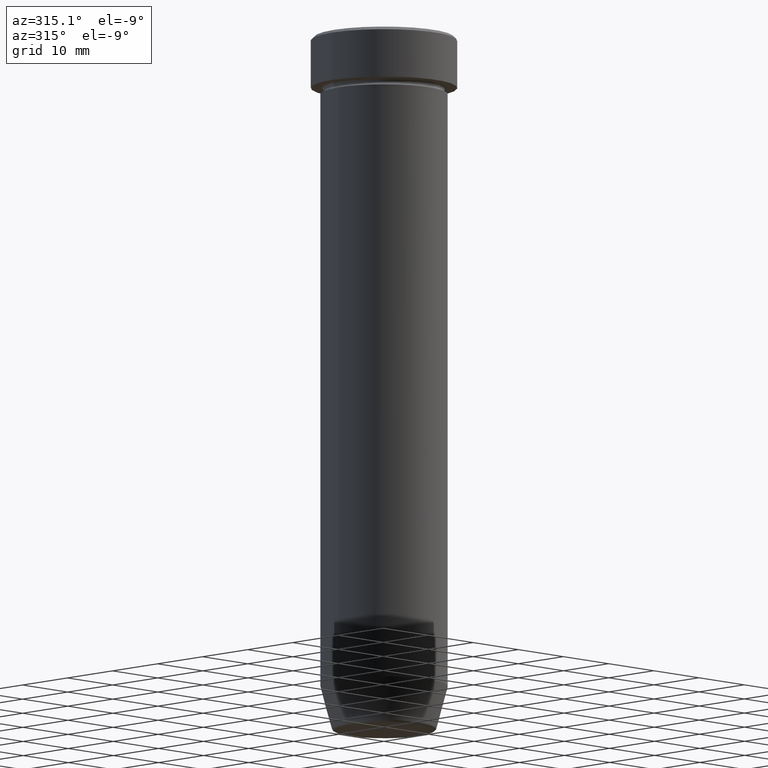
[diagram: clean part render]
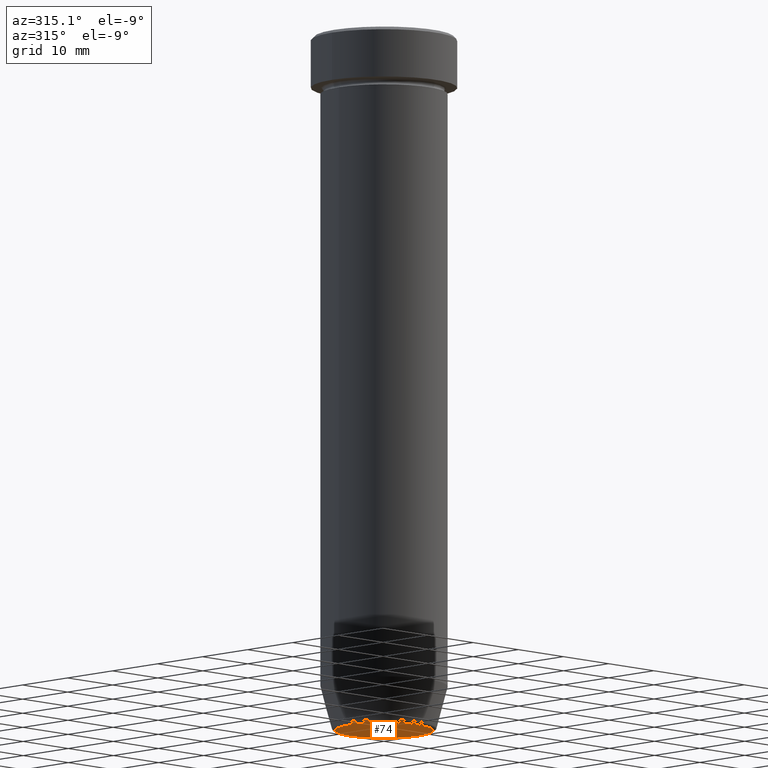
[diagram: same view with one face highlighted and labeled with its STEP entity id]
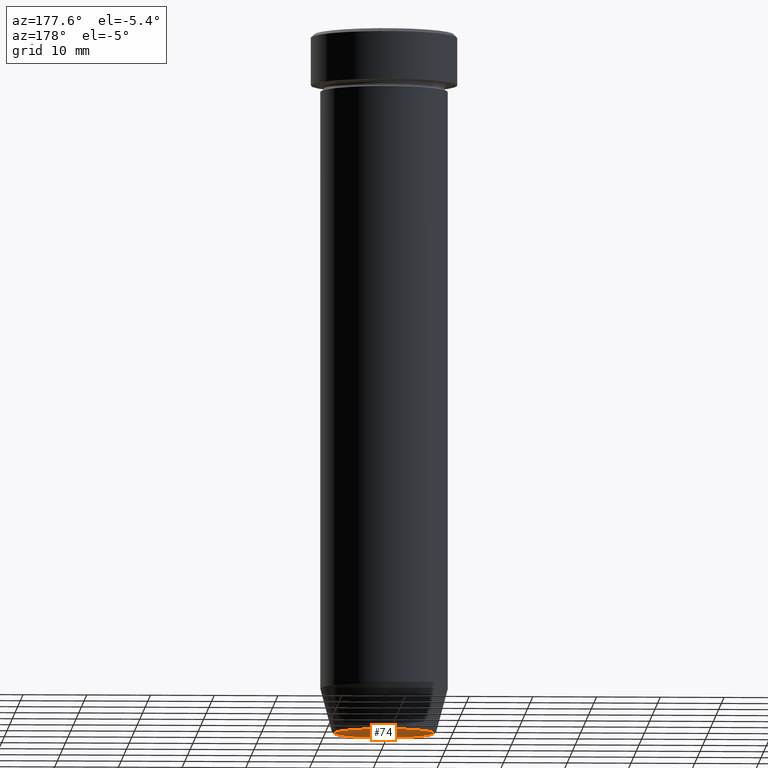
[diagram: same view with one face highlighted and labeled with its STEP entity id]
A machine part, auxiliary view. The second image highlights one B-rep face of the part: STEP entity #74.
A second angle (auxiliary view) of the same face is appended — the face is thin or edge-on in the first view.
In plain terms, the highlighted planar face has unit normal (0, -0, 1).
Its self-contained STEP definition (entity closure, byte-faithful):
#21 = CARTESIAN_POINT ( 'NONE',  ( -7.740692158992654726, 9.775343368540039135E-16, -109.9999999999999858 ) ) ;
#23 = CARTESIAN_POINT ( 'NONE',  ( 0.000000000000000000, 0.000000000000000000, -109.9999999999999858 ) ) ;
#42 = DIRECTION ( 'NONE',  ( 1.000000000000000000, 0.000000000000000000, 0.000000000000000000 ) ) ;
#50 = EDGE_CURVE ( 'NONE', #232, #279, #103, .T. ) ;
#62 = CARTESIAN_POINT ( 'NONE',  ( 7.740692158992654726, 0.000000000000000000, -109.9999999999999858 ) ) ;
#70 = DIRECTION ( 'NONE',  ( 0.000000000000000000, 0.000000000000000000, -1.000000000000000000 ) ) ;
#74 = ADVANCED_FACE ( 'NONE', ( #456 ), #184, .F. ) ;
#103 = CIRCLE ( 'NONE', #488, 7.740692158992654726 ) ;
#118 = CARTESIAN_POINT ( 'NONE',  ( 0.000000000000000000, 0.000000000000000000, -109.9999999999999858 ) ) ;
#173 = DIRECTION ( 'NONE',  ( 1.000000000000000000, 0.000000000000000000, 0.000000000000000000 ) ) ;
#184 = PLANE ( 'NONE',  #309 ) ;
#226 = ORIENTED_EDGE ( 'NONE', *, *, #50, .T. ) ;
#232 = VERTEX_POINT ( 'NONE', #62 ) ;
#237 = DIRECTION ( 'NONE',  ( 0.000000000000000000, -0.000000000000000000, 1.000000000000000000 ) ) ;
#272 = CARTESIAN_POINT ( 'NONE',  ( 0.000000000000000000, 7.347880794884118356E-15, -109.9999999999999858 ) ) ;
#279 = VERTEX_POINT ( 'NONE', #21 ) ;
#299 = AXIS2_PLACEMENT_3D ( 'NONE', #23, #393, #173 ) ;
#309 = AXIS2_PLACEMENT_3D ( 'NONE', #272, #237, #42 ) ;
#384 = EDGE_CURVE ( 'NONE', #279, #232, #477, .T. ) ;
#393 = DIRECTION ( 'NONE',  ( 0.000000000000000000, 0.000000000000000000, -1.000000000000000000 ) ) ;
#400 = DIRECTION ( 'NONE',  ( 1.000000000000000000, 0.000000000000000000, 0.000000000000000000 ) ) ;
#456 = FACE_OUTER_BOUND ( 'NONE', #557, .T. ) ;
#477 = CIRCLE ( 'NONE', #299, 7.740692158992654726 ) ;
#488 = AXIS2_PLACEMENT_3D ( 'NONE', #118, #70, #400 ) ;
#557 = EDGE_LOOP ( 'NONE', ( #226, #593 ) ) ;
#593 = ORIENTED_EDGE ( 'NONE', *, *, #384, .T. ) ;